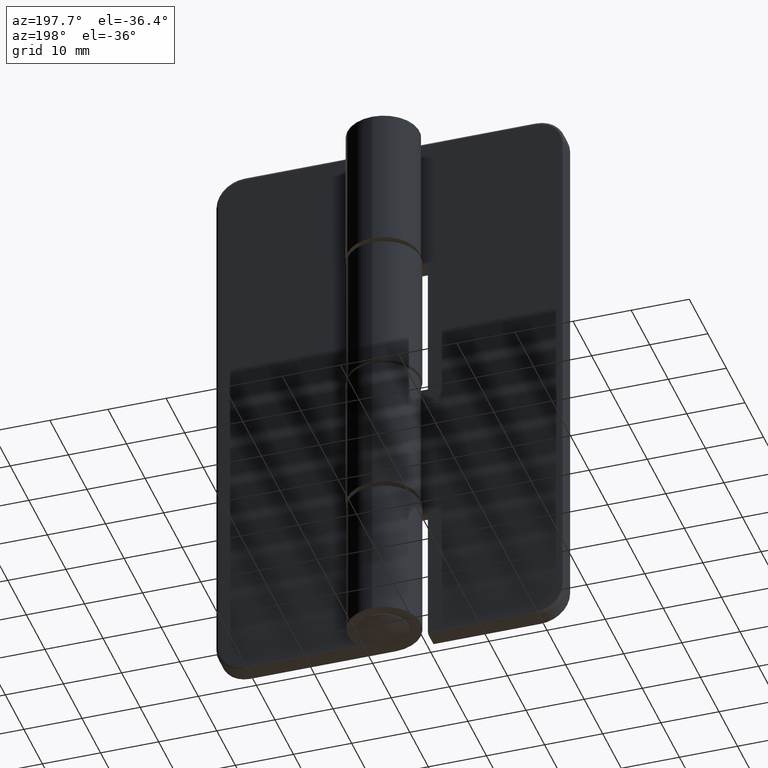
[diagram: clean part render]
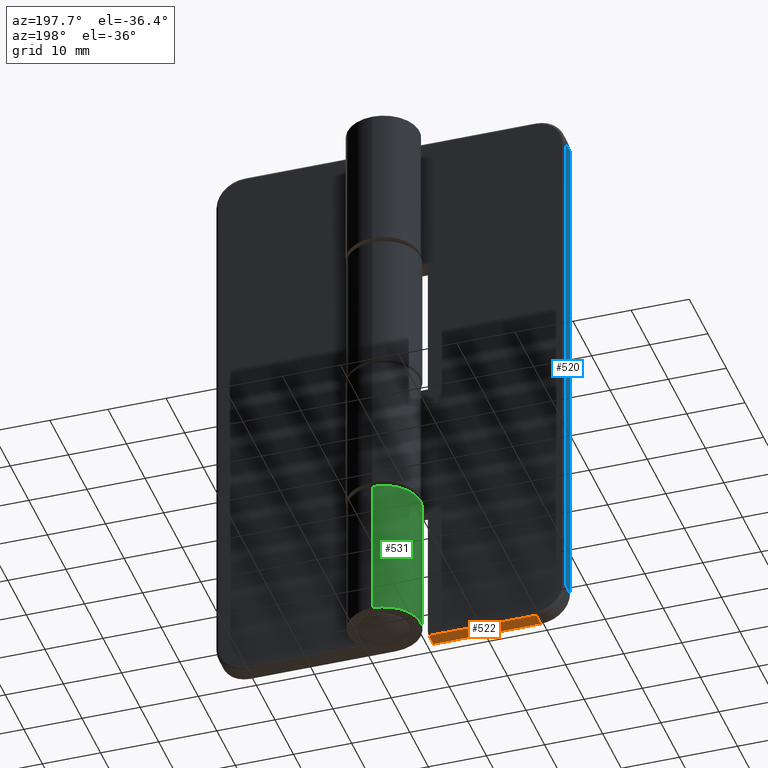
[diagram: same view with three faces highlighted in distinct colors, each labeled with its STEP entity id]
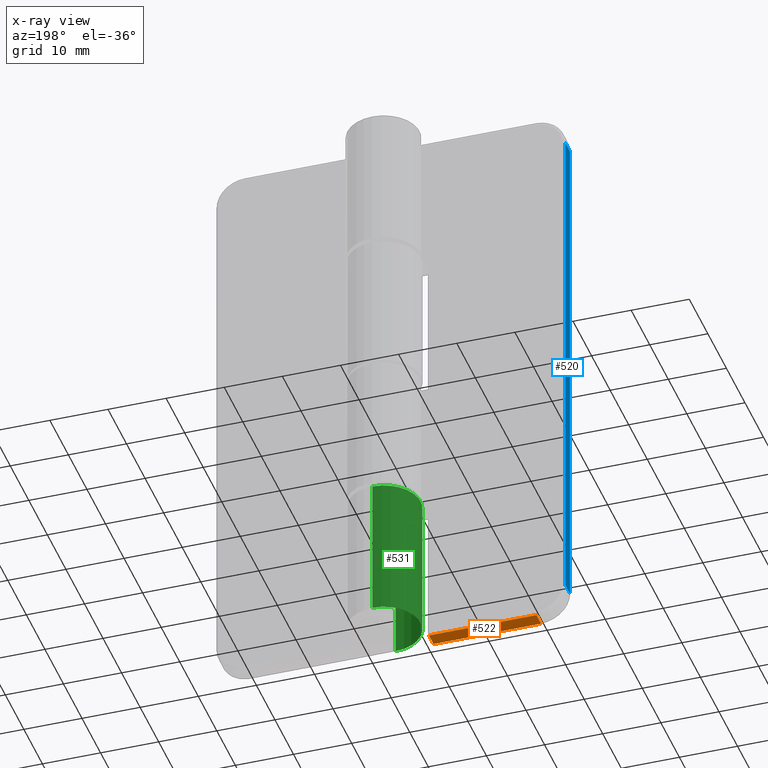
[diagram: x-ray of the same camera — body ghosted, the three highlighted faces saturated]
A machine part, auxiliary view with three faces highlighted in distinct colors.
The next image is the same camera in x-ray (body ghosted, the three faces saturated) — at least one of them is partly hidden behind the body in this view.
Their STEP definitions:

[orange] entity #522 — the highlighted planar face has unit normal (0, 0, 1).
#39=PLANE('',#573);
#55=LINE('',#838,#96);
#63=LINE('',#860,#104);
#64=LINE('',#864,#105);
#65=LINE('',#865,#106);
#96=VECTOR('',#656,18.5);
#104=VECTOR('',#678,2.5);
#105=VECTOR('',#683,2.5);
#106=VECTOR('',#684,18.5);
#155=FACE_OUTER_BOUND('',#187,.T.);
#187=EDGE_LOOP('',(#407,#408,#409,#410));
#255=VERTEX_POINT('',#830);
#257=VERTEX_POINT('',#836);
#264=VERTEX_POINT('',#859);
#265=VERTEX_POINT('',#863);
#309=EDGE_CURVE('',#257,#255,#55,.T.);
#320=EDGE_CURVE('',#255,#264,#63,.T.);
#322=EDGE_CURVE('',#257,#265,#64,.T.);
#323=EDGE_CURVE('',#265,#264,#65,.T.);
#407=ORIENTED_EDGE('',*,*,#309,.F.);
#408=ORIENTED_EDGE('',*,*,#322,.T.);
#409=ORIENTED_EDGE('',*,*,#323,.T.);
#410=ORIENTED_EDGE('',*,*,#320,.F.);
#522=ADVANCED_FACE('',(#155),#39,.F.);
#573=AXIS2_PLACEMENT_3D('',#862,#681,#682);
#656=DIRECTION('',(-1.,0.,0.));
#678=DIRECTION('',(0.,-1.,0.));
#681=DIRECTION('center_axis',(0.,0.,1.));
#682=DIRECTION('ref_axis',(1.,0.,0.));
#683=DIRECTION('',(0.,-1.,0.));
#684=DIRECTION('',(-1.,-1.22464679914735E-16,0.));
#830=CARTESIAN_POINT('',(-25.,2.5,-100.));
#836=CARTESIAN_POINT('',(-6.50000000000002,2.5,-100.));
#838=CARTESIAN_POINT('',(-14.8931358470727,2.5,-100.));
#859=CARTESIAN_POINT('',(-25.,-3.06161699786838E-15,-100.));
#860=CARTESIAN_POINT('',(-25.,3.30780771028753,-100.));
#862=CARTESIAN_POINT('Origin',(0.213728305854641,6.61561542057506,-100.));
#863=CARTESIAN_POINT('',(-6.50000000000002,-7.96020419445783E-16,-100.));
#864=CARTESIAN_POINT('',(-6.50000000000002,4.80780771028753,-100.));
#865=CARTESIAN_POINT('',(-30.,-3.67394039744206E-15,-100.));

[blue] entity #520 — the highlighted planar face has unit normal (-1, 0, 0).
#38=PLANE('',#570);
#53=LINE('',#826,#94);
#60=LINE('',#852,#101);
#61=LINE('',#856,#102);
#62=LINE('',#857,#103);
#94=VECTOR('',#642,90.);
#101=VECTOR('',#669,2.5);
#102=VECTOR('',#674,2.5);
#103=VECTOR('',#675,90.);
#153=FACE_OUTER_BOUND('',#185,.T.);
#185=EDGE_LOOP('',(#399,#400,#401,#402));
#251=VERTEX_POINT('',#818);
#253=VERTEX_POINT('',#824);
#262=VERTEX_POINT('',#851);
#263=VERTEX_POINT('',#855);
#303=EDGE_CURVE('',#253,#251,#53,.T.);
#316=EDGE_CURVE('',#251,#262,#60,.T.);
#318=EDGE_CURVE('',#263,#253,#61,.T.);
#319=EDGE_CURVE('',#262,#263,#62,.T.);
#399=ORIENTED_EDGE('',*,*,#303,.F.);
#400=ORIENTED_EDGE('',*,*,#318,.F.);
#401=ORIENTED_EDGE('',*,*,#319,.F.);
#402=ORIENTED_EDGE('',*,*,#316,.F.);
#520=ADVANCED_FACE('',(#153),#38,.T.);
#570=AXIS2_PLACEMENT_3D('',#854,#672,#673);
#642=DIRECTION('',(0.,0.,1.));
#669=DIRECTION('',(0.,-1.,0.));
#672=DIRECTION('center_axis',(-1.,0.,0.));
#673=DIRECTION('ref_axis',(0.,1.,0.));
#674=DIRECTION('',(0.,1.,0.));
#675=DIRECTION('',(0.,0.,-1.));
#818=CARTESIAN_POINT('',(-30.,2.5,-5.));
#824=CARTESIAN_POINT('',(-30.,2.5,-95.));
#826=CARTESIAN_POINT('',(-30.,2.5,0.));
#851=CARTESIAN_POINT('',(-30.,-3.67394039744206E-15,-5.));
#852=CARTESIAN_POINT('',(-30.,3.30780771028753,-5.));
#854=CARTESIAN_POINT('Origin',(-30.,-3.88578058618805E-15,0.));
#855=CARTESIAN_POINT('',(-30.,-3.67394039744206E-15,-95.));
#856=CARTESIAN_POINT('',(-30.,3.30780771028753,-95.));
#857=CARTESIAN_POINT('',(-30.,-3.67394039744206E-15,0.));

[green] entity #531 — the highlighted cylindrical surface (partial cylindrical patch) has radius 6.3 mm, axis along (0, 0, 1).
#83=LINE('',#919,#124);
#87=LINE('',#926,#128);
#124=VECTOR('',#732,24.7);
#128=VECTOR('',#742,24.7);
#139=CYLINDRICAL_SURFACE('',#591,6.3);
#164=FACE_OUTER_BOUND('',#196,.T.);
#196=EDGE_LOOP('',(#462,#463,#464,#465));
#225=CIRCLE('',#566,6.3);
#237=CIRCLE('',#587,6.3);
#259=VERTEX_POINT('',#843);
#260=VERTEX_POINT('',#845);
#285=VERTEX_POINT('',#912);
#286=VERTEX_POINT('',#914);
#313=EDGE_CURVE('',#259,#260,#225,.T.);
#347=EDGE_CURVE('',#286,#285,#237,.T.);
#350=EDGE_CURVE('',#259,#286,#83,.T.);
#354=EDGE_CURVE('',#260,#285,#87,.T.);
#462=ORIENTED_EDGE('',*,*,#347,.T.);
#463=ORIENTED_EDGE('',*,*,#354,.F.);
#464=ORIENTED_EDGE('',*,*,#313,.F.);
#465=ORIENTED_EDGE('',*,*,#350,.T.);
#531=ADVANCED_FACE('',(#164),#139,.T.);
#566=AXIS2_PLACEMENT_3D('',#846,#662,#663);
#587=AXIS2_PLACEMENT_3D('',#915,#726,#727);
#591=AXIS2_PLACEMENT_3D('',#925,#740,#741);
#662=DIRECTION('center_axis',(0.,0.,1.));
#663=DIRECTION('ref_axis',(-5.19866336927653E-15,-1.,0.));
#726=DIRECTION('center_axis',(0.,0.,1.));
#727=DIRECTION('ref_axis',(-5.19866336927653E-15,-1.,0.));
#732=DIRECTION('',(0.,0.,-1.));
#740=DIRECTION('center_axis',(0.,0.,-1.));
#741=DIRECTION('ref_axis',(-5.19866336927653E-15,-1.,0.));
#742=DIRECTION('',(0.,0.,-1.));
#843=CARTESIAN_POINT('',(0.,0.,0.));
#845=CARTESIAN_POINT('',(6.68488115725261E-14,12.6,0.));
#846=CARTESIAN_POINT('Origin',(3.27515792264421E-14,6.3,0.));
#912=CARTESIAN_POINT('',(6.68488115725261E-14,12.6,-24.7));
#914=CARTESIAN_POINT('',(0.,0.,-24.7));
#915=CARTESIAN_POINT('Origin',(3.27515792264421E-14,6.3,-24.7));
#919=CARTESIAN_POINT('',(0.,0.,0.));
#925=CARTESIAN_POINT('Origin',(3.27515792264421E-14,6.3,0.));
#926=CARTESIAN_POINT('',(6.68488115725261E-14,12.6,0.));